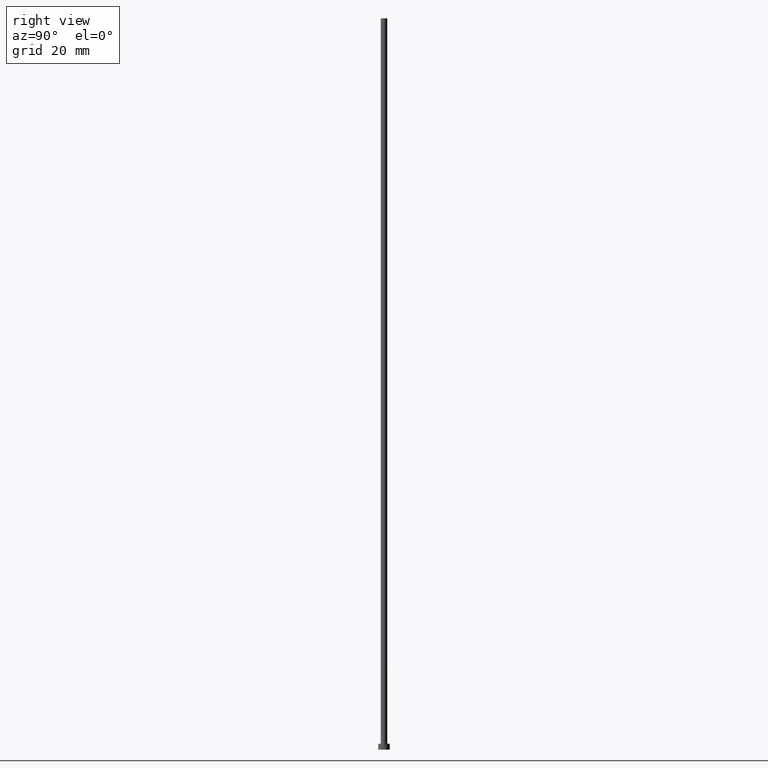
[diagram: clean part render]
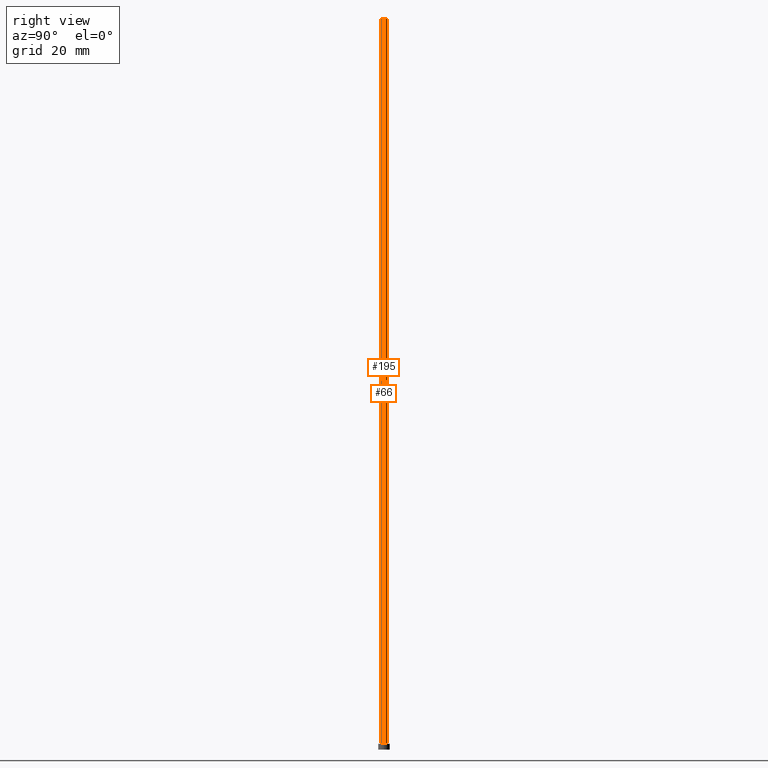
[diagram: same view with one multi-face feature highlighted, each face labeled with its STEP entity id]
A machine part, right view. The highlighted faces form ONE feature: a constant-radius fillet chain: 2 tangent blend faces with common blend radius 1.1 mm. The faces share edges in the B-rep.
Their STEP definitions:
[1] entity #195 (Cylinder):
#2 = CARTESIAN_POINT ( 'NONE',  ( 0.000000000000000000, 0.000000000000000000, 250.0000000000000000 ) ) ;
#5 = DIRECTION ( 'NONE',  ( -1.000000000000000000, 0.000000000000000000, 0.000000000000000000 ) ) ;
#16 = CARTESIAN_POINT ( 'NONE',  ( -1.100000000000000089, 0.000000000000000000, 2.000000000000000000 ) ) ;
#17 = EDGE_CURVE ( 'NONE', #100, #144, #229, .T. ) ;
#23 = CARTESIAN_POINT ( 'NONE',  ( 1.100000000000000089, 1.347111479062088503E-16, 250.0000000000000000 ) ) ;
#27 = AXIS2_PLACEMENT_3D ( 'NONE', #203, #185, #5 ) ;
#32 = EDGE_LOOP ( 'NONE', ( #143, #255, #240, #56 ) ) ;
#56 = ORIENTED_EDGE ( 'NONE', *, *, #17, .T. ) ;
#63 = LINE ( 'NONE', #245, #113 ) ;
#67 = DIRECTION ( 'NONE',  ( 1.000000000000000000, 0.000000000000000000, 0.000000000000000000 ) ) ;
#82 = LINE ( 'NONE', #85, #136 ) ;
#85 = CARTESIAN_POINT ( 'NONE',  ( 1.100000000000000089, 1.347111479062088503E-16, 250.0000000000000000 ) ) ;
#100 = VERTEX_POINT ( 'NONE', #16 ) ;
#104 = FACE_OUTER_BOUND ( 'NONE', #32, .T. ) ;
#106 = CARTESIAN_POINT ( 'NONE',  ( 1.100000000000000089, 1.347111479062088503E-16, 2.000000000000000000 ) ) ;
#113 = VECTOR ( 'NONE', #146, 1000.000000000000000 ) ;
#120 = VERTEX_POINT ( 'NONE', #179 ) ;
#126 = DIRECTION ( 'NONE',  ( 0.000000000000000000, 0.000000000000000000, 1.000000000000000000 ) ) ;
#136 = VECTOR ( 'NONE', #167, 1000.000000000000000 ) ;
#138 = VERTEX_POINT ( 'NONE', #23 ) ;
#141 = AXIS2_PLACEMENT_3D ( 'NONE', #175, #252, #159 ) ;
#143 = ORIENTED_EDGE ( 'NONE', *, *, #212, .F. ) ;
#144 = VERTEX_POINT ( 'NONE', #106 ) ;
#146 = DIRECTION ( 'NONE',  ( -0.000000000000000000, -0.000000000000000000, -1.000000000000000000 ) ) ;
#148 = CIRCLE ( 'NONE', #210, 1.100000000000000089 ) ;
#159 = DIRECTION ( 'NONE',  ( 1.000000000000000000, 0.000000000000000000, 0.000000000000000000 ) ) ;
#167 = DIRECTION ( 'NONE',  ( -0.000000000000000000, -0.000000000000000000, -1.000000000000000000 ) ) ;
#175 = CARTESIAN_POINT ( 'NONE',  ( 0.000000000000000000, 0.000000000000000000, 2.000000000000000000 ) ) ;
#179 = CARTESIAN_POINT ( 'NONE',  ( -1.100000000000000089, 0.000000000000000000, 250.0000000000000000 ) ) ;
#180 = EDGE_CURVE ( 'NONE', #120, #138, #148, .T. ) ;
#181 = CYLINDRICAL_SURFACE ( 'NONE', #27, 1.100000000000000089 ) ;
#185 = DIRECTION ( 'NONE',  ( -0.000000000000000000, -0.000000000000000000, -1.000000000000000000 ) ) ;
#195 = ADVANCED_FACE ( 'NONE', ( #104 ), #181, .T. ) ;
#203 = CARTESIAN_POINT ( 'NONE',  ( 0.000000000000000000, 0.000000000000000000, 250.0000000000000000 ) ) ;
#210 = AXIS2_PLACEMENT_3D ( 'NONE', #2, #126, #67 ) ;
#212 = EDGE_CURVE ( 'NONE', #138, #144, #82, .T. ) ;
#216 = EDGE_CURVE ( 'NONE', #120, #100, #63, .T. ) ;
#229 = CIRCLE ( 'NONE', #141, 1.100000000000000089 ) ;
#240 = ORIENTED_EDGE ( 'NONE', *, *, #216, .T. ) ;
#245 = CARTESIAN_POINT ( 'NONE',  ( -1.100000000000000089, 0.000000000000000000, 250.0000000000000000 ) ) ;
#252 = DIRECTION ( 'NONE',  ( 0.000000000000000000, 0.000000000000000000, 1.000000000000000000 ) ) ;
#255 = ORIENTED_EDGE ( 'NONE', *, *, #180, .F. ) ;
[2] entity #66 (Cylinder):
#4 = CIRCLE ( 'NONE', #55, 1.100000000000000089 ) ;
#6 = CARTESIAN_POINT ( 'NONE',  ( 0.000000000000000000, 0.000000000000000000, 250.0000000000000000 ) ) ;
#13 = ORIENTED_EDGE ( 'NONE', *, *, #145, .T. ) ;
#16 = CARTESIAN_POINT ( 'NONE',  ( -1.100000000000000089, 0.000000000000000000, 2.000000000000000000 ) ) ;
#19 = DIRECTION ( 'NONE',  ( 1.000000000000000000, 0.000000000000000000, 0.000000000000000000 ) ) ;
#23 = CARTESIAN_POINT ( 'NONE',  ( 1.100000000000000089, 1.347111479062088503E-16, 250.0000000000000000 ) ) ;
#35 = EDGE_LOOP ( 'NONE', ( #196, #114, #13, #194 ) ) ;
#42 = DIRECTION ( 'NONE',  ( -0.000000000000000000, -0.000000000000000000, -1.000000000000000000 ) ) ;
#55 = AXIS2_PLACEMENT_3D ( 'NONE', #122, #199, #19 ) ;
#57 = CIRCLE ( 'NONE', #202, 1.100000000000000089 ) ;
#63 = LINE ( 'NONE', #245, #113 ) ;
#64 = DIRECTION ( 'NONE',  ( -1.000000000000000000, 0.000000000000000000, 0.000000000000000000 ) ) ;
#66 = ADVANCED_FACE ( 'NONE', ( #197 ), #164, .T. ) ;
#81 = DIRECTION ( 'NONE',  ( 1.000000000000000000, 0.000000000000000000, 0.000000000000000000 ) ) ;
#82 = LINE ( 'NONE', #85, #136 ) ;
#85 = CARTESIAN_POINT ( 'NONE',  ( 1.100000000000000089, 1.347111479062088503E-16, 250.0000000000000000 ) ) ;
#100 = VERTEX_POINT ( 'NONE', #16 ) ;
#106 = CARTESIAN_POINT ( 'NONE',  ( 1.100000000000000089, 1.347111479062088503E-16, 2.000000000000000000 ) ) ;
#113 = VECTOR ( 'NONE', #146, 1000.000000000000000 ) ;
#114 = ORIENTED_EDGE ( 'NONE', *, *, #212, .T. ) ;
#120 = VERTEX_POINT ( 'NONE', #179 ) ;
#122 = CARTESIAN_POINT ( 'NONE',  ( 0.000000000000000000, 0.000000000000000000, 250.0000000000000000 ) ) ;
#136 = VECTOR ( 'NONE', #167, 1000.000000000000000 ) ;
#138 = VERTEX_POINT ( 'NONE', #23 ) ;
#144 = VERTEX_POINT ( 'NONE', #106 ) ;
#145 = EDGE_CURVE ( 'NONE', #144, #100, #57, .T. ) ;
#146 = DIRECTION ( 'NONE',  ( -0.000000000000000000, -0.000000000000000000, -1.000000000000000000 ) ) ;
#154 = AXIS2_PLACEMENT_3D ( 'NONE', #6, #42, #64 ) ;
#164 = CYLINDRICAL_SURFACE ( 'NONE', #154, 1.100000000000000089 ) ;
#166 = DIRECTION ( 'NONE',  ( 0.000000000000000000, 0.000000000000000000, 1.000000000000000000 ) ) ;
#167 = DIRECTION ( 'NONE',  ( -0.000000000000000000, -0.000000000000000000, -1.000000000000000000 ) ) ;
#179 = CARTESIAN_POINT ( 'NONE',  ( -1.100000000000000089, 0.000000000000000000, 250.0000000000000000 ) ) ;
#187 = CARTESIAN_POINT ( 'NONE',  ( 0.000000000000000000, 0.000000000000000000, 2.000000000000000000 ) ) ;
#194 = ORIENTED_EDGE ( 'NONE', *, *, #216, .F. ) ;
#196 = ORIENTED_EDGE ( 'NONE', *, *, #228, .F. ) ;
#197 = FACE_OUTER_BOUND ( 'NONE', #35, .T. ) ;
#199 = DIRECTION ( 'NONE',  ( 0.000000000000000000, 0.000000000000000000, 1.000000000000000000 ) ) ;
#202 = AXIS2_PLACEMENT_3D ( 'NONE', #187, #166, #81 ) ;
#212 = EDGE_CURVE ( 'NONE', #138, #144, #82, .T. ) ;
#216 = EDGE_CURVE ( 'NONE', #120, #100, #63, .T. ) ;
#228 = EDGE_CURVE ( 'NONE', #138, #120, #4, .T. ) ;
#245 = CARTESIAN_POINT ( 'NONE',  ( -1.100000000000000089, 0.000000000000000000, 250.0000000000000000 ) ) ;